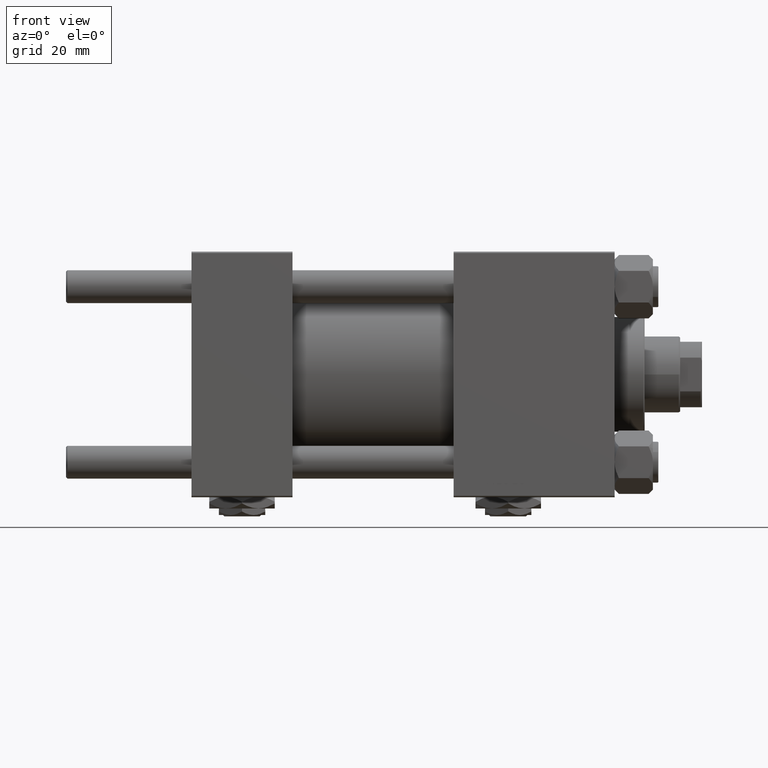
[diagram: clean part render]
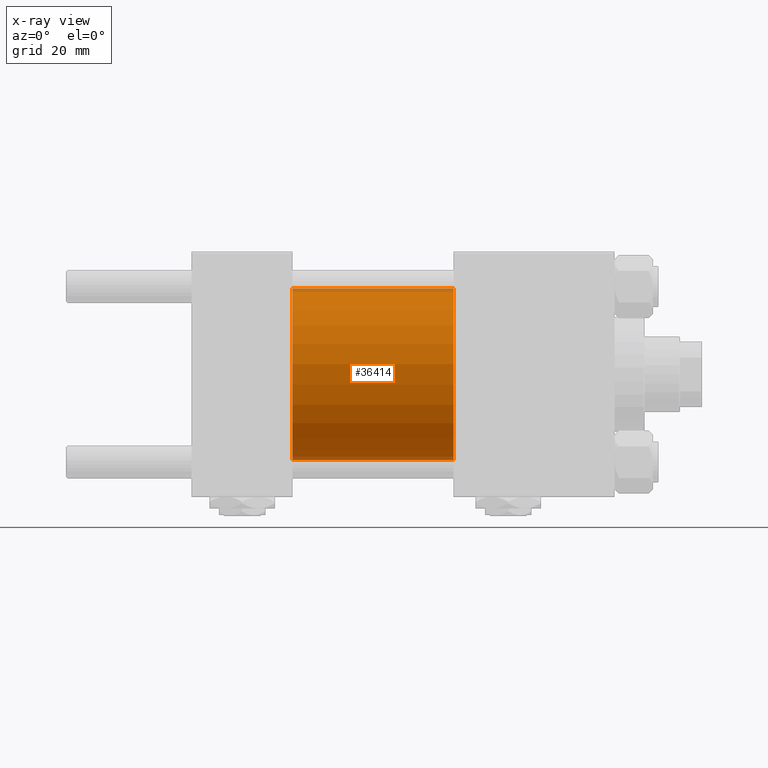
[diagram: x-ray — body ghosted, one internal face saturated and labeled with its STEP entity id]
A machine part, front view, then the same camera in x-ray: the body is ghosted and one INTERNAL B-rep face — a face not visible from any outside direction — is saturated and labeled: STEP entity #36414.
In plain terms, the highlighted cylindrical surface (partial cylindrical patch) has radius 31.5 mm, axis along (-1, -0, -0).
Its self-contained STEP definition (entity closure, byte-faithful):
#142 = AXIS2_PLACEMENT_3D ( 'NONE', #4651, #20892, #36899 ) ;
#566 = VERTEX_POINT ( 'NONE', #12989 ) ;
#825 = CARTESIAN_POINT ( 'NONE',  ( 96.00000000000000000, 0.000000000000000000, 31.50000000000000000 ) ) ;
#1139 = ORIENTED_EDGE ( 'NONE', *, *, #16110, .T. ) ;
#1559 = CARTESIAN_POINT ( 'NONE',  ( 96.00000000000000000, 0.000000000000000000, 31.50000000000000000 ) ) ;
#1609 = CARTESIAN_POINT ( 'NONE',  ( 96.00000000000000000, 0.000000000000000000, 0.000000000000000000 ) ) ;
#4307 = EDGE_CURVE ( 'NONE', #35733, #566, #11843, .T. ) ;
#4651 = CARTESIAN_POINT ( 'NONE',  ( 37.00000000000000000, 0.000000000000000000, 0.000000000000000000 ) ) ;
#6053 = DIRECTION ( 'NONE',  ( 1.000000000000000000, 0.000000000000000000, 0.000000000000000000 ) ) ;
#11843 = LINE ( 'NONE', #825, #45212 ) ;
#12566 = AXIS2_PLACEMENT_3D ( 'NONE', #22388, #18460, #46536 ) ;
#12989 = CARTESIAN_POINT ( 'NONE',  ( 37.00000000000000000, 0.000000000000000000, 31.50000000000000000 ) ) ;
#16110 = EDGE_CURVE ( 'NONE', #35733, #23694, #38169, .T. ) ;
#17582 = DIRECTION ( 'NONE',  ( 0.000000000000000000, 0.000000000000000000, -1.000000000000000000 ) ) ;
#17594 = CARTESIAN_POINT ( 'NONE',  ( 37.00000000000000000, 3.857637417314162689E-15, -31.50000000000000000 ) ) ;
#18460 = DIRECTION ( 'NONE',  ( -1.000000000000000000, -0.000000000000000000, -0.000000000000000000 ) ) ;
#19162 = LINE ( 'NONE', #35153, #50048 ) ;
#20129 = EDGE_CURVE ( 'NONE', #23694, #39795, #19162, .T. ) ;
#20892 = DIRECTION ( 'NONE',  ( 1.000000000000000000, 0.000000000000000000, 0.000000000000000000 ) ) ;
#22153 = ORIENTED_EDGE ( 'NONE', *, *, #43831, .F. ) ;
#22388 = CARTESIAN_POINT ( 'NONE',  ( 96.00000000000000000, 0.000000000000000000, 0.000000000000000000 ) ) ;
#23694 = VERTEX_POINT ( 'NONE', #51803 ) ;
#26058 = FACE_OUTER_BOUND ( 'NONE', #44286, .T. ) ;
#35153 = CARTESIAN_POINT ( 'NONE',  ( 96.00000000000000000, 3.857637417314162689E-15, -31.50000000000000000 ) ) ;
#35733 = VERTEX_POINT ( 'NONE', #1559 ) ;
#36414 = ADVANCED_FACE ( 'NONE', ( #26058 ), #42084, .F. ) ;
#36899 = DIRECTION ( 'NONE',  ( 0.000000000000000000, 0.000000000000000000, -1.000000000000000000 ) ) ;
#38169 = CIRCLE ( 'NONE', #45735, 31.50000000000000000 ) ;
#39795 = VERTEX_POINT ( 'NONE', #17594 ) ;
#40322 = ORIENTED_EDGE ( 'NONE', *, *, #20129, .T. ) ;
#42084 = CYLINDRICAL_SURFACE ( 'NONE', #12566, 31.50000000000000000 ) ;
#43831 = EDGE_CURVE ( 'NONE', #566, #39795, #45353, .T. ) ;
#44101 = DIRECTION ( 'NONE',  ( -1.000000000000000000, -0.000000000000000000, -0.000000000000000000 ) ) ;
#44286 = EDGE_LOOP ( 'NONE', ( #1139, #40322, #22153, #51765 ) ) ;
#45212 = VECTOR ( 'NONE', #44101, 1000.000000000000000 ) ;
#45353 = CIRCLE ( 'NONE', #142, 31.50000000000000000 ) ;
#45735 = AXIS2_PLACEMENT_3D ( 'NONE', #1609, #6053, #17582 ) ;
#46536 = DIRECTION ( 'NONE',  ( 0.000000000000000000, 0.000000000000000000, 1.000000000000000000 ) ) ;
#50048 = VECTOR ( 'NONE', #50386, 1000.000000000000000 ) ;
#50386 = DIRECTION ( 'NONE',  ( -1.000000000000000000, -0.000000000000000000, -0.000000000000000000 ) ) ;
#51765 = ORIENTED_EDGE ( 'NONE', *, *, #4307, .F. ) ;
#51803 = CARTESIAN_POINT ( 'NONE',  ( 96.00000000000000000, 3.857637417314162689E-15, -31.50000000000000000 ) ) ;